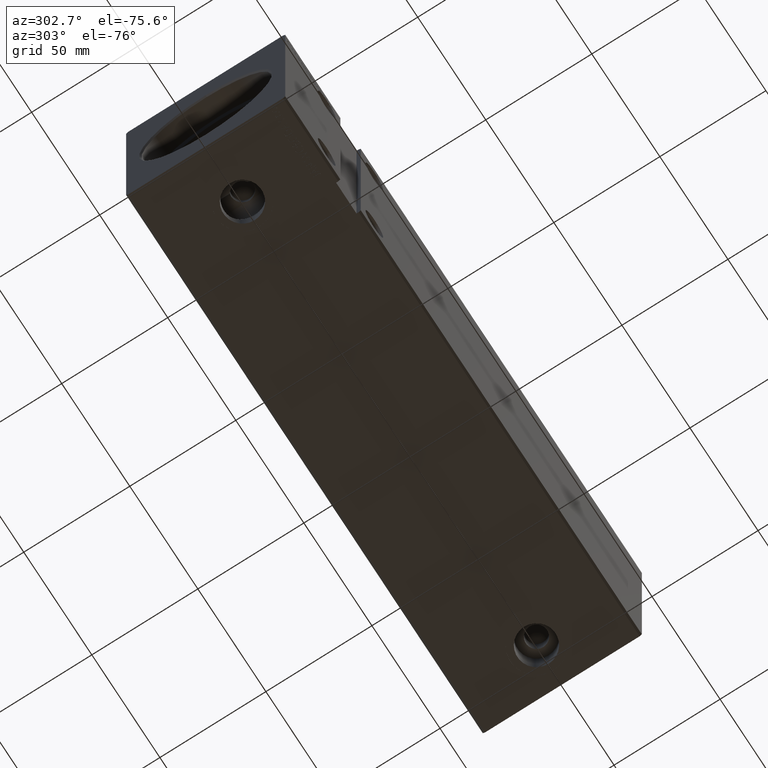
[diagram: clean part render]
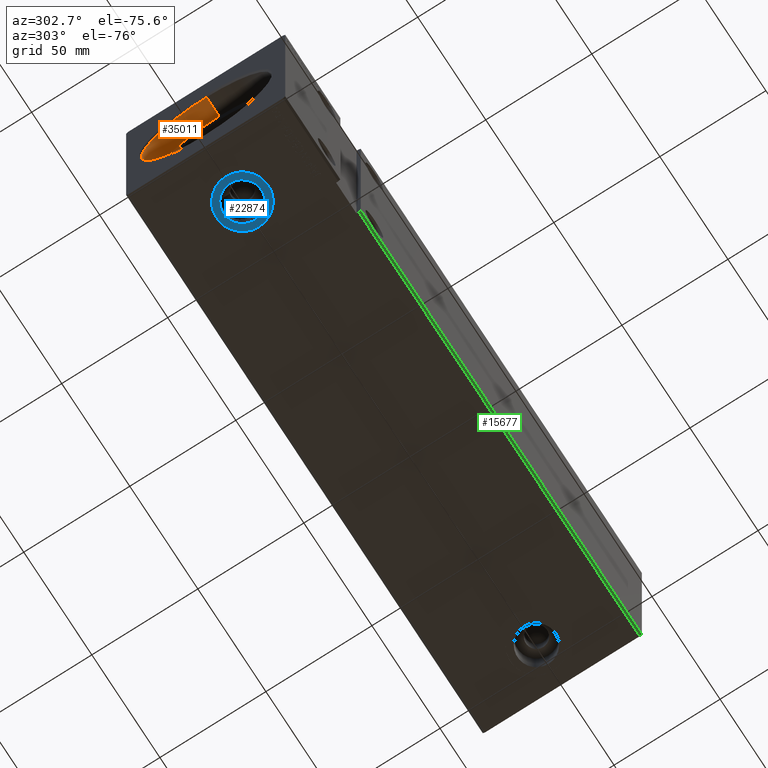
[diagram: same view with three faces highlighted in distinct colors, each labeled with its STEP entity id]
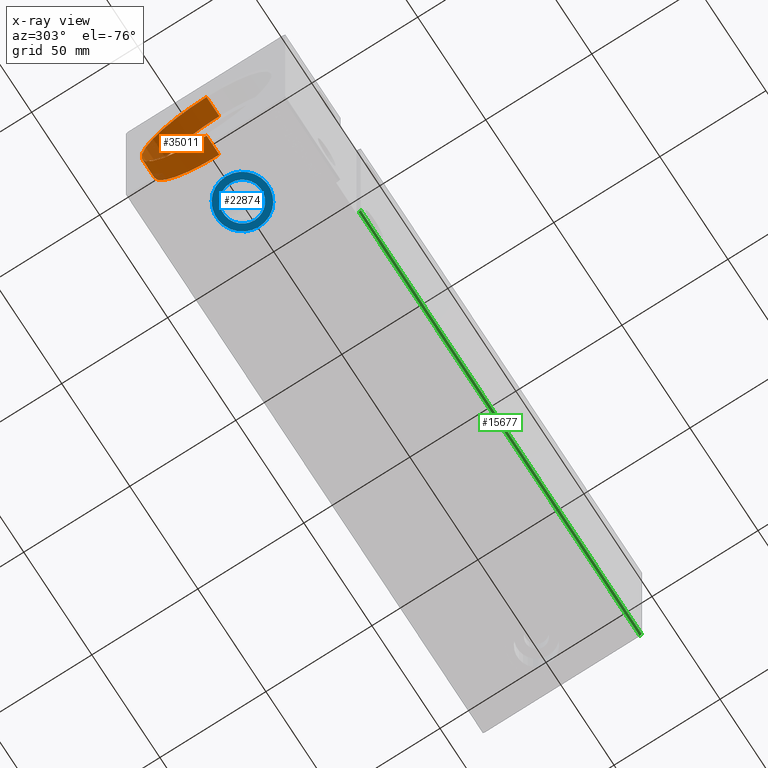
[diagram: x-ray of the same camera — body ghosted, the three highlighted faces saturated]
A machine part, auxiliary view with three faces highlighted in distinct colors.
The next image is the same camera in x-ray (body ghosted, the three faces saturated) — at least one of them is partly hidden behind the body in this view.
Their STEP definitions:

[orange] entity #35011 — the highlighted cylindrical surface (partial cylindrical patch) has radius 30.75 mm, axis along (-1, -0, -0).
#531 = VECTOR ( 'NONE', #12971, 1000.000000000000000 ) ;
#1689 = CARTESIAN_POINT ( 'NONE',  ( 10.00000000000000000, 3.765788907378111328E-15, -30.75000000000000355 ) ) ;
#2423 = CARTESIAN_POINT ( 'NONE',  ( 0.6999999999999957367, 0.000000000000000000, 30.75000000000000355 ) ) ;
#2812 = CYLINDRICAL_SURFACE ( 'NONE', #38088, 30.75000000000000355 ) ;
#3830 = EDGE_LOOP ( 'NONE', ( #10598, #23227, #23247, #14771 ) ) ;
#5266 = CARTESIAN_POINT ( 'NONE',  ( 10.00000000000000000, 0.000000000000000000, 30.75000000000000355 ) ) ;
#5674 = AXIS2_PLACEMENT_3D ( 'NONE', #40817, #25034, #19201 ) ;
#6347 = CARTESIAN_POINT ( 'NONE',  ( 10.00000000000000000, 0.000000000000000000, 30.75000000000000355 ) ) ;
#8243 = VERTEX_POINT ( 'NONE', #5266 ) ;
#10598 = ORIENTED_EDGE ( 'NONE', *, *, #32530, .F. ) ;
#11767 = VERTEX_POINT ( 'NONE', #2423 ) ;
#12127 = CARTESIAN_POINT ( 'NONE',  ( 10.00000000000000000, 0.000000000000000000, 0.000000000000000000 ) ) ;
#12971 = DIRECTION ( 'NONE',  ( -1.000000000000000000, -0.000000000000000000, -0.000000000000000000 ) ) ;
#14771 = ORIENTED_EDGE ( 'NONE', *, *, #30846, .T. ) ;
#14897 = CIRCLE ( 'NONE', #31459, 30.75000000000000355 ) ;
#15026 = FACE_OUTER_BOUND ( 'NONE', #3830, .T. ) ;
#17499 = CARTESIAN_POINT ( 'NONE',  ( 0.6999999999999957367, 0.000000000000000000, 0.000000000000000000 ) ) ;
#17892 = CARTESIAN_POINT ( 'NONE',  ( 10.00000000000000000, 3.765788907378111328E-15, -30.75000000000000355 ) ) ;
#18614 = VERTEX_POINT ( 'NONE', #17892 ) ;
#19201 = DIRECTION ( 'NONE',  ( 0.000000000000000000, 0.000000000000000000, 1.000000000000000000 ) ) ;
#23227 = ORIENTED_EDGE ( 'NONE', *, *, #32161, .F. ) ;
#23247 = ORIENTED_EDGE ( 'NONE', *, *, #23993, .T. ) ;
#23993 = EDGE_CURVE ( 'NONE', #8243, #11767, #31852, .T. ) ;
#24565 = DIRECTION ( 'NONE',  ( -1.000000000000000000, -0.000000000000000000, -0.000000000000000000 ) ) ;
#25034 = DIRECTION ( 'NONE',  ( -1.000000000000000000, 0.000000000000000000, 0.000000000000000000 ) ) ;
#26957 = LINE ( 'NONE', #1689, #34803 ) ;
#27048 = DIRECTION ( 'NONE',  ( 0.000000000000000000, 0.000000000000000000, -1.000000000000000000 ) ) ;
#28442 = CARTESIAN_POINT ( 'NONE',  ( 0.6999999999999957367, 3.765788907378111328E-15, -30.75000000000000355 ) ) ;
#30163 = DIRECTION ( 'NONE',  ( -1.000000000000000000, 0.000000000000000000, 0.000000000000000000 ) ) ;
#30846 = EDGE_CURVE ( 'NONE', #11767, #32268, #14897, .T. ) ;
#31459 = AXIS2_PLACEMENT_3D ( 'NONE', #17499, #30163, #27048 ) ;
#31852 = LINE ( 'NONE', #6347, #531 ) ;
#32161 = EDGE_CURVE ( 'NONE', #8243, #18614, #40764, .T. ) ;
#32268 = VERTEX_POINT ( 'NONE', #28442 ) ;
#32530 = EDGE_CURVE ( 'NONE', #18614, #32268, #26957, .T. ) ;
#33605 = DIRECTION ( 'NONE',  ( -1.000000000000000000, -0.000000000000000000, -0.000000000000000000 ) ) ;
#34803 = VECTOR ( 'NONE', #33605, 1000.000000000000000 ) ;
#35011 = ADVANCED_FACE ( 'NONE', ( #15026 ), #2812, .F. ) ;
#38088 = AXIS2_PLACEMENT_3D ( 'NONE', #12127, #24565, #40953 ) ;
#40764 = CIRCLE ( 'NONE', #5674, 30.75000000000000355 ) ;
#40817 = CARTESIAN_POINT ( 'NONE',  ( 10.00000000000000000, 0.000000000000000000, 0.000000000000000000 ) ) ;
#40953 = DIRECTION ( 'NONE',  ( 0.000000000000000000, 0.000000000000000000, 1.000000000000000000 ) ) ;

[blue] entity #22874 — the highlighted planar face has unit normal (0, 0, -1).
#1168 = EDGE_CURVE ( 'NONE', #25208, #4219, #6294, .T. ) ;
#1946 = PLANE ( 'NONE',  #14584 ) ;
#2149 = DIRECTION ( 'NONE',  ( 0.000000000000000000, 0.000000000000000000, -1.000000000000000000 ) ) ;
#4219 = VERTEX_POINT ( 'NONE', #10273 ) ;
#6277 = DIRECTION ( 'NONE',  ( 0.000000000000000000, 0.000000000000000000, -1.000000000000000000 ) ) ;
#6294 = CIRCLE ( 'NONE', #21526, 12.25000000000000000 ) ;
#6975 = VERTEX_POINT ( 'NONE', #39540 ) ;
#7090 = DIRECTION ( 'NONE',  ( 0.000000000000000000, 0.000000000000000000, -1.000000000000000000 ) ) ;
#8017 = DIRECTION ( 'NONE',  ( -1.000000000000000000, 0.000000000000000000, 0.000000000000000000 ) ) ;
#9421 = EDGE_LOOP ( 'NONE', ( #36856, #30260 ) ) ;
#10273 = CARTESIAN_POINT ( 'NONE',  ( 39.25000000000000000, -4.635008494449654964E-15, -49.89999999999999858 ) ) ;
#11132 = CARTESIAN_POINT ( 'NONE',  ( 27.00000000000000000, -6.135200823405162107E-15, -49.89999999999999858 ) ) ;
#14576 = FACE_OUTER_BOUND ( 'NONE', #9421, .T. ) ;
#14584 = AXIS2_PLACEMENT_3D ( 'NONE', #20578, #2149, #36567 ) ;
#16971 = ORIENTED_EDGE ( 'NONE', *, *, #22209, .F. ) ;
#17059 = EDGE_LOOP ( 'NONE', ( #16971, #19400 ) ) ;
#18327 = CARTESIAN_POINT ( 'NONE',  ( 14.75000000000000000, -6.135200823405162107E-15, -49.89999999999999858 ) ) ;
#19100 = CARTESIAN_POINT ( 'NONE',  ( 27.00000000000000000, -6.135200823405162107E-15, -49.89999999999999858 ) ) ;
#19400 = ORIENTED_EDGE ( 'NONE', *, *, #38220, .F. ) ;
#20578 = CARTESIAN_POINT ( 'NONE',  ( 0.000000000000000000, 0.000000000000000000, -49.89999999999999858 ) ) ;
#20766 = DIRECTION ( 'NONE',  ( -1.000000000000000000, 0.000000000000000000, 0.000000000000000000 ) ) ;
#21526 = AXIS2_PLACEMENT_3D ( 'NONE', #11132, #36638, #8017 ) ;
#22209 = EDGE_CURVE ( 'NONE', #34143, #6975, #27152, .T. ) ;
#22874 = ADVANCED_FACE ( 'NONE', ( #30335, #14576 ), #1946, .T. ) ;
#25208 = VERTEX_POINT ( 'NONE', #18327 ) ;
#26849 = AXIS2_PLACEMENT_3D ( 'NONE', #19100, #7090, #31783 ) ;
#27152 = CIRCLE ( 'NONE', #35790, 8.999999999999998224 ) ;
#29515 = CIRCLE ( 'NONE', #26849, 8.999999999999998224 ) ;
#29558 = CARTESIAN_POINT ( 'NONE',  ( 18.00000000000000355, -6.135200823405162107E-15, -49.89999999999999858 ) ) ;
#30260 = ORIENTED_EDGE ( 'NONE', *, *, #38148, .T. ) ;
#30335 = FACE_BOUND ( 'NONE', #17059, .T. ) ;
#31783 = DIRECTION ( 'NONE',  ( -1.000000000000000000, 0.000000000000000000, 0.000000000000000000 ) ) ;
#34143 = VERTEX_POINT ( 'NONE', #29558 ) ;
#35790 = AXIS2_PLACEMENT_3D ( 'NONE', #36154, #36768, #20766 ) ;
#36154 = CARTESIAN_POINT ( 'NONE',  ( 27.00000000000000000, -6.135200823405162107E-15, -49.89999999999999858 ) ) ;
#36567 = DIRECTION ( 'NONE',  ( -1.000000000000000000, 0.000000000000000000, -0.000000000000000000 ) ) ;
#36638 = DIRECTION ( 'NONE',  ( 0.000000000000000000, 0.000000000000000000, -1.000000000000000000 ) ) ;
#36768 = DIRECTION ( 'NONE',  ( 0.000000000000000000, 0.000000000000000000, -1.000000000000000000 ) ) ;
#36856 = ORIENTED_EDGE ( 'NONE', *, *, #1168, .T. ) ;
#37401 = DIRECTION ( 'NONE',  ( -1.000000000000000000, 0.000000000000000000, 0.000000000000000000 ) ) ;
#38148 = EDGE_CURVE ( 'NONE', #4219, #25208, #40130, .T. ) ;
#38220 = EDGE_CURVE ( 'NONE', #6975, #34143, #29515, .T. ) ;
#38797 = AXIS2_PLACEMENT_3D ( 'NONE', #40925, #6277, #37401 ) ;
#39540 = CARTESIAN_POINT ( 'NONE',  ( 36.00000000000000000, -5.033018704172544196E-15, -49.89999999999999858 ) ) ;
#40130 = CIRCLE ( 'NONE', #38797, 12.25000000000000000 ) ;
#40925 = CARTESIAN_POINT ( 'NONE',  ( 27.00000000000000000, -6.135200823405162107E-15, -49.89999999999999858 ) ) ;

[green] entity #15677 — the highlighted planar face has unit normal (-0, 0.7071, 0.7071).
#1537 = ORIENTED_EDGE ( 'NONE', *, *, #28241, .F. ) ;
#2557 = CARTESIAN_POINT ( 'NONE',  ( 262.0000000000000000, -37.50000000000001421, -49.00000000000000000 ) ) ;
#2734 = CARTESIAN_POINT ( 'NONE',  ( 55.50000000000000711, -36.50000000000000711, -50.00000000000000000 ) ) ;
#3264 = CARTESIAN_POINT ( 'NONE',  ( 262.0000000000000000, -37.50000000000001421, -49.00000000000000000 ) ) ;
#4594 = ORIENTED_EDGE ( 'NONE', *, *, #16926, .T. ) ;
#4929 = CARTESIAN_POINT ( 'NONE',  ( 55.50000000000000711, -37.50000000000001421, -48.99999999999997158 ) ) ;
#10593 = CARTESIAN_POINT ( 'NONE',  ( 262.0000000000000000, -37.50000000000001421, -49.00000000000000000 ) ) ;
#11204 = FACE_OUTER_BOUND ( 'NONE', #16979, .T. ) ;
#13908 = DIRECTION ( 'NONE',  ( 0.000000000000000000, -0.7071067811865500152, 0.7071067811865451302 ) ) ;
#14152 = VECTOR ( 'NONE', #28034, 1000.000000000000114 ) ;
#15381 = LINE ( 'NONE', #2557, #14152 ) ;
#15677 = ADVANCED_FACE ( 'NONE', ( #11204 ), #39011, .F. ) ;
#16926 = EDGE_CURVE ( 'NONE', #35340, #18121, #24790, .T. ) ;
#16979 = EDGE_LOOP ( 'NONE', ( #29142, #4594, #37171, #1537 ) ) ;
#17593 = CARTESIAN_POINT ( 'NONE',  ( 262.0000000000000000, -37.50000000000001421, -49.00000000000000000 ) ) ;
#18121 = VERTEX_POINT ( 'NONE', #2734 ) ;
#18559 = CARTESIAN_POINT ( 'NONE',  ( 55.49999999999999289, -37.50000000000000711, -49.00000000000000711 ) ) ;
#20461 = VECTOR ( 'NONE', #29478, 1000.000000000000114 ) ;
#22323 = DIRECTION ( 'NONE',  ( -1.000000000000000000, -0.000000000000000000, -0.000000000000000000 ) ) ;
#24022 = CARTESIAN_POINT ( 'NONE',  ( 262.0000000000000000, -36.50000000000000711, -50.00000000000000000 ) ) ;
#24790 = LINE ( 'NONE', #18559, #20461 ) ;
#24982 = VERTEX_POINT ( 'NONE', #17593 ) ;
#26792 = CARTESIAN_POINT ( 'NONE',  ( 262.0000000000000000, -36.50000000000000711, -50.00000000000000000 ) ) ;
#28034 = DIRECTION ( 'NONE',  ( 0.000000000000000000, 0.7071067811865500152, -0.7071067811865451302 ) ) ;
#28241 = EDGE_CURVE ( 'NONE', #24982, #30240, #15381, .T. ) ;
#29142 = ORIENTED_EDGE ( 'NONE', *, *, #35520, .T. ) ;
#29478 = DIRECTION ( 'NONE',  ( 4.906538933386781218E-17, 0.7071067811865500152, -0.7071067811865451302 ) ) ;
#30061 = DIRECTION ( 'NONE',  ( -0.000000000000000000, 0.7071067811865451302, 0.7071067811865500152 ) ) ;
#30240 = VERTEX_POINT ( 'NONE', #26792 ) ;
#30767 = VECTOR ( 'NONE', #22323, 1000.000000000000000 ) ;
#32896 = VECTOR ( 'NONE', #36684, 1000.000000000000000 ) ;
#35340 = VERTEX_POINT ( 'NONE', #4929 ) ;
#35520 = EDGE_CURVE ( 'NONE', #24982, #35340, #37693, .T. ) ;
#36684 = DIRECTION ( 'NONE',  ( -1.000000000000000000, -0.000000000000000000, -0.000000000000000000 ) ) ;
#37171 = ORIENTED_EDGE ( 'NONE', *, *, #40792, .F. ) ;
#37693 = LINE ( 'NONE', #3264, #30767 ) ;
#39011 = PLANE ( 'NONE',  #40277 ) ;
#39393 = LINE ( 'NONE', #24022, #32896 ) ;
#40277 = AXIS2_PLACEMENT_3D ( 'NONE', #10593, #30061, #13908 ) ;
#40792 = EDGE_CURVE ( 'NONE', #30240, #18121, #39393, .T. ) ;